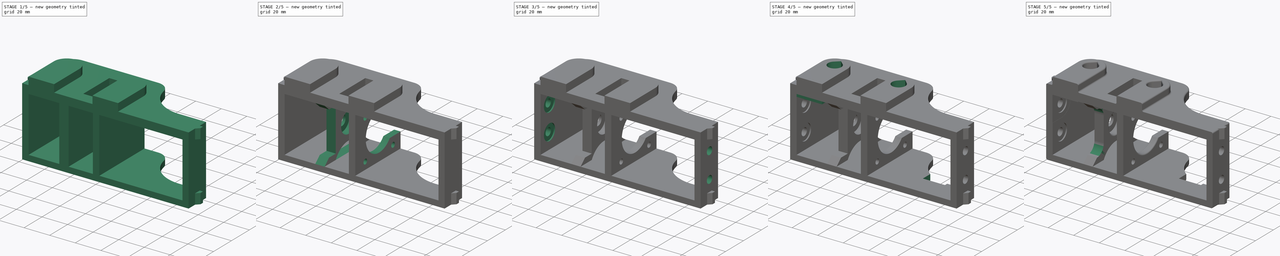
[diagram: build sequence overview — one tinted view per stage of 5, left to right]
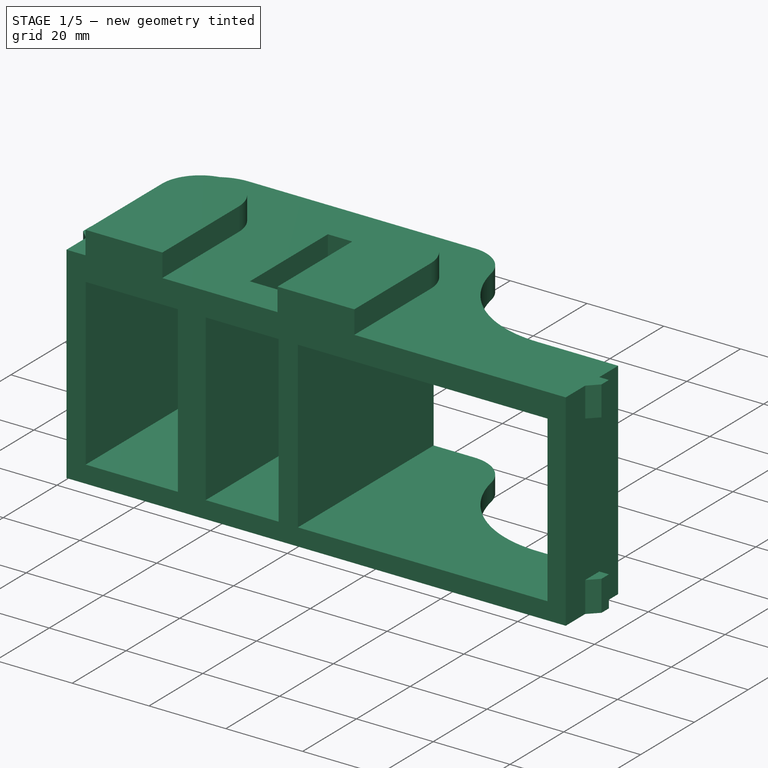
[diagram: stage 1 of 5 — iso view after this stage's code; geometry added in this stage tinted green]
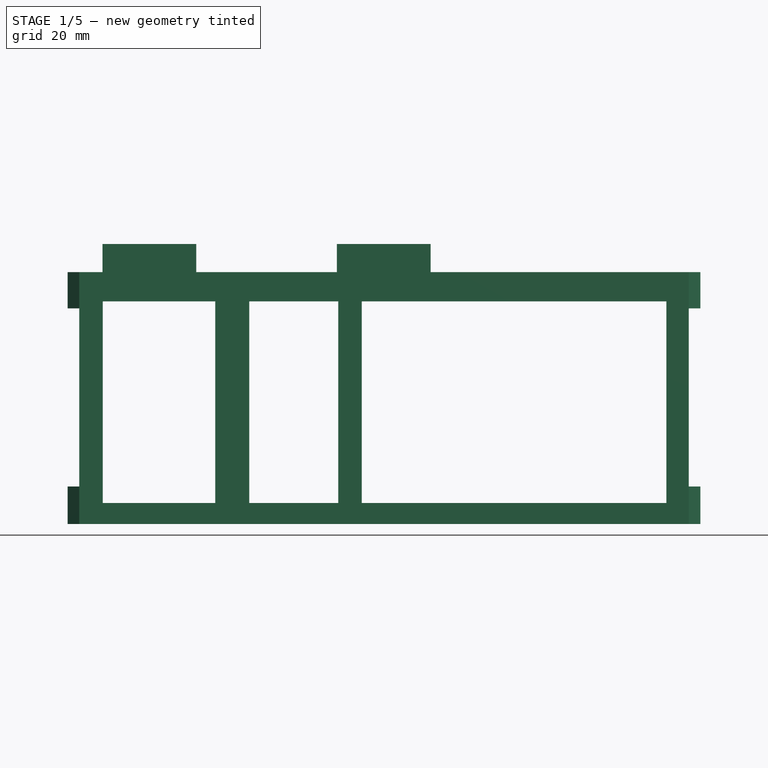
[diagram: stage 1 of 5 — front view after this stage's code; geometry added in this stage tinted green]
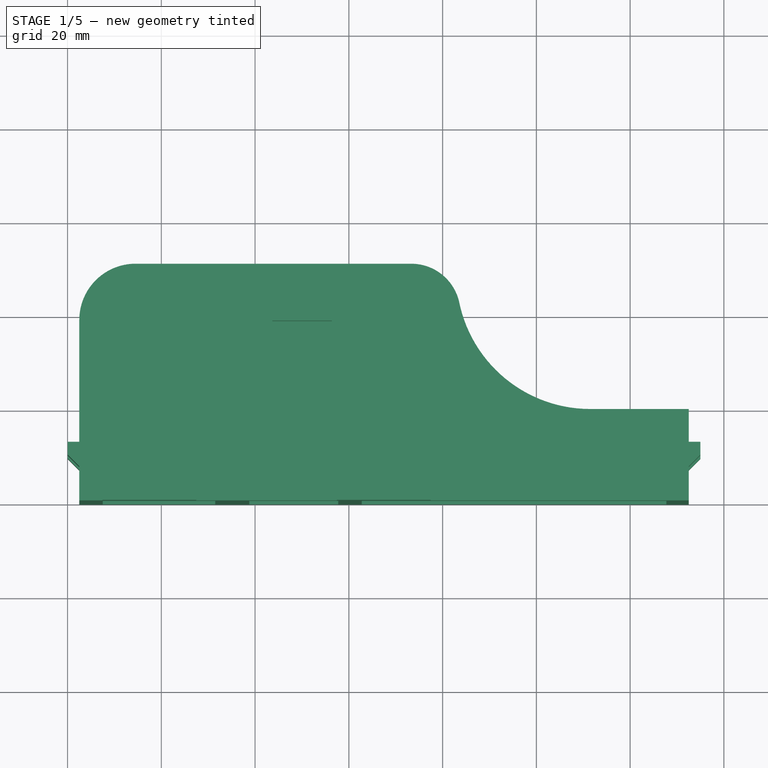
[diagram: stage 1 of 5 — top view after this stage's code; geometry added in this stage tinted green]
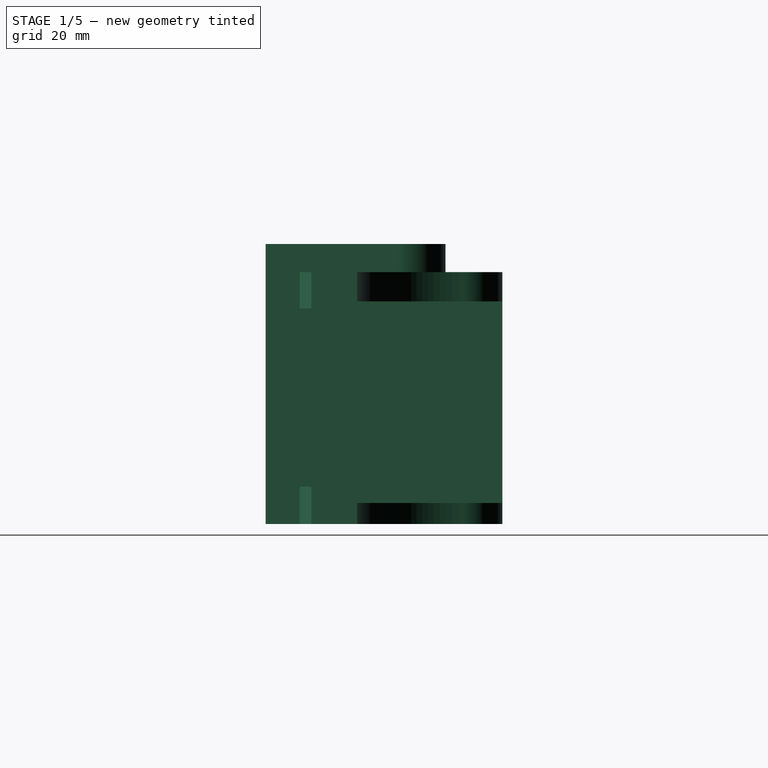
[diagram: stage 1 of 5 — right view after this stage's code; geometry added in this stage tinted green]
FCSTD DOCUMENT  (FreeCAD 0.17R13662 (Git))
Label: Z_lower_leftv2.5
License: CreativeCommons Attribution-ShareAlike
LicenseURL: http://creativecommons.org/licenses/by-sa/4.0/
objects: Sketcher::SketchObject×16, PartDesign::Pocket×14, PartDesign::Fillet×3, PartDesign::Pad×2, PartDesign::Body×1
note: 52 computed .brp shape members not serialized (recipe doc carries the construction recipe); baked Part::Feature solids carry a one-line shape summary decoded from their .brp

FEATURE [Sketcher::SketchObject] Sketch007
  MapMode = 5
  Placement = pos=(38.75,0,0) rot=(0.57735,0.57735,0.57735;2.0944rad)
  sketch-geometry (1):
    g0: Circle CenterX=26.675 CenterY=25.75 CenterZ=0 NormalX=0 NormalY=0 NormalZ=1 AngleXU=0 Radius=8.25
  constraints (3):
    c: Radius(g0) = 8.25
    c: DistanceX(g0) = 26.675
    c: DistanceY(g0) = 25.75
FEATURE [Sketcher::SketchObject] Sketch
  MapMode = 5
  Support = -> [XY_Plane]
  sketch-geometry (18):
    g0: LineSegment StartX=132.5 StartY=0 StartZ=0 EndX=132.5 EndY=7.25 EndZ=0
    g1: LineSegment StartX=132.5 StartY=7.25 StartZ=0 EndX=135 EndY=9.75 EndZ=0
    g2: LineSegment StartX=135 StartY=9.75 StartZ=0 EndX=135 EndY=12.5 EndZ=0
    g3: LineSegment StartX=135 StartY=12.5 StartZ=0 EndX=132.5 EndY=12.5 EndZ=0
    g4: LineSegment StartX=132.5 StartY=12.5 StartZ=0 EndX=132.5 EndY=19.5 EndZ=0
    g5: LineSegment StartX=132.5 StartY=19.5 StartZ=0 EndX=111.5 EndY=19.5 EndZ=0
    g6: LineSegment StartX=2.5 StartY=0 StartZ=0 EndX=2.5 EndY=7.25 EndZ=0
    g7: LineSegment StartX=2.5 StartY=7.25 StartZ=0 EndX=0 EndY=9.75 EndZ=0
    g8: LineSegment StartX=0 StartY=9.75 StartZ=0 EndX=0 EndY=12.5 EndZ=0
    g9: LineSegment StartX=0 StartY=12.5 StartZ=0 EndX=2.5 EndY=12.5 EndZ=0
    g10: LineSegment StartX=2.5 StartY=12.5 StartZ=0 EndX=2.5 EndY=38.5 EndZ=0
    g11: LineSegment StartX=14.5 StartY=50.5 StartZ=0 EndX=73.302 EndY=50.5 EndZ=0
    g12: LineSegment [constr] StartX=73.302 StartY=50.5 StartZ=0 EndX=83.5 EndY=42.5 EndZ=0
    g13: LineSegment [constr] StartX=83.5 StartY=42.5 StartZ=0 EndX=111.5 EndY=19.5 EndZ=0
    g14: LineSegment StartX=2.5 StartY=0 StartZ=0 EndX=132.5 EndY=0 EndZ=0
    g15: ArcOfCircle CenterX=73.302 CenterY=40 CenterZ=0 NormalX=0 NormalY=0 NormalZ=1 AngleXU=0 Radius=10.5 StartAngle=0.240404 EndAngle=1.5708
    g16: ArcOfCircle CenterX=111.5 CenterY=48.0435 CenterZ=0 NormalX=0 NormalY=0 NormalZ=1 AngleXU=0 Radius=28.5435 StartAngle=3.33705 EndAngle=4.71239
    g17: ArcOfCircle CenterX=14.5 CenterY=38.5 CenterZ=0 NormalX=0 NormalY=0 NormalZ=1 AngleXU=0 Radius=12 StartAngle=1.5708 EndAngle=3.14159
  constraints (51):
    c: Coincident(g0,g1)
    c: Coincident(g1,g2)
    c: Coincident(g2,g3)
    c: Coincident(g3,g4)
    c: Coincident(g4,g5)
    c: Coincident(g6,g7)
    c: Coincident(g7,g8)
    c: Coincident(g8,g9)
    c: Coincident(g9,g10)
    c: Coincident(g11,g12)
    c: Coincident(g12,g13)
    c: Coincident(g0,g14)
    c: Coincident(g6,g14)
    c: PointOnObject(g6,g-1)
    c: DistanceX(g6) = 2.5
    c: Vertical(g6)
    c: Vertical(g10)
    c: Vertical(g8)
    c: Vertical(g4)
    c: Vertical(g2)
    c: Vertical(g0)
    c: Horizontal(g3)
    c: Horizontal(g14)
    c: Horizontal(g5)
    c: Horizontal(g11)
    c: Horizontal(g9)
    c: DistanceY(g6,g6) = 7.25
    c: Angle(g7) = 2.35619
    c: DistanceX(g7,g7) = 2.5
    c: DistanceX(g9,g9) = 2.5
    c: DistanceY(g8,g8) = 2.75
    c: DistanceX(g14,g14) = 130
    c: DistanceY(g0,g0) = 7.25
    c: Angle(g1) = 0.785398
    c: DistanceX(g1,g1) = 2.5
    c: DistanceY(g2,g2) = 2.75
    c: DistanceX(g3,g3) = 2.5
    c: DistanceY(g4,g4) = 7
    c: DistanceX(g5,g5) = 21
    c: Tangent(g5,g16) = 1.5708
    c: Tangent(g11,g15) = 1.5708
    c: Coincident(g12,g15)
    c: Coincident(g12,g16)
    c: DistanceX(g12) = 83.5
    c: DistanceY(g12) = 42.5
    c: Coincident(g5,g13)
    c: DistanceY(g10,g10) = 26
    c: Tangent(g10,g17) = 1.5708
    c: Tangent(g11,g17) = 1.5708
    c: DistanceY(g10,g11) = 12
    c: Radius(g15) = 10.5
FEATURE [PartDesign::Pad] Pad
  Length = 59.75
  Length2 = 100
  Profile = -> Sketch
  Type = 0
FEATURE [Sketcher::SketchObject] Sketch001
  MapMode = 5
  Placement = pos=(0,0,0) rot=(1,0,0;1.5708rad)
  Support = -> [Pad]
  sketch-geometry (20):
    g0: LineSegment StartX=7.5 StartY=47.5 StartZ=0 EndX=31.5 EndY=47.5 EndZ=0
    g1: LineSegment StartX=31.5 StartY=47.5 StartZ=0 EndX=31.5 EndY=4.5 EndZ=0
    g2: LineSegment StartX=31.5 StartY=4.5 StartZ=0 EndX=7.5 EndY=4.5 EndZ=0
    g3: LineSegment StartX=7.5 StartY=4.5 StartZ=0 EndX=7.5 EndY=47.5 EndZ=0
    g4: LineSegment StartX=38.75 StartY=47.5 StartZ=0 EndX=57.75 EndY=47.5 EndZ=0
    g5: LineSegment StartX=57.75 StartY=47.5 StartZ=0 EndX=57.75 EndY=4.5 EndZ=0
    g6: LineSegment StartX=57.75 StartY=4.5 StartZ=0 EndX=38.75 EndY=4.5 EndZ=0
    g7: LineSegment StartX=38.75 StartY=4.5 StartZ=0 EndX=38.75 EndY=47.5 EndZ=0
    g8: LineSegment StartX=62.75 StartY=47.5 StartZ=0 EndX=127.75 EndY=47.5 EndZ=0
    g9: LineSegment StartX=127.75 StartY=47.5 StartZ=0 EndX=127.75 EndY=4.5 EndZ=0
    g10: LineSegment StartX=127.75 StartY=4.5 StartZ=0 EndX=62.75 EndY=4.5 EndZ=0
    g11: LineSegment StartX=62.75 StartY=4.5 StartZ=0 EndX=62.75 EndY=47.5 EndZ=0
    g12: LineSegment StartX=0 StartY=46 StartZ=0 EndX=2.5 EndY=46 EndZ=0
    g13: LineSegment StartX=2.5 StartY=46 StartZ=0 EndX=2.5 EndY=8 EndZ=0
    g14: LineSegment StartX=2.5 StartY=8 StartZ=0 EndX=0 EndY=8 EndZ=0
    g15: LineSegment StartX=0 StartY=8 StartZ=0 EndX=0 EndY=46 EndZ=0
    g16: LineSegment StartX=132.5 StartY=46 StartZ=0 EndX=135 EndY=46 EndZ=0
    g17: LineSegment StartX=135 StartY=46 StartZ=0 EndX=135 EndY=8 EndZ=0
    g18: LineSegment StartX=135 StartY=8 StartZ=0 EndX=132.5 EndY=8 EndZ=0
    g19: LineSegment StartX=132.5 StartY=8 StartZ=0 EndX=132.5 EndY=46 EndZ=0
  constraints (60):
    c: Coincident(g0,g1)
    c: Coincident(g1,g2)
    c: Coincident(g2,g3)
    c: Coincident(g3,g0)
    c: Horizontal(g0)
    c: Horizontal(g2)
    c: Vertical(g1)
    c: Vertical(g3)
    c: Coincident(g4,g5)
    c: Coincident(g5,g6)
    c: Coincident(g6,g7)
    c: Coincident(g7,g4)
    c: Horizontal(g4)
    c: Horizontal(g6)
    c: Vertical(g5)
    c: Vertical(g7)
    c: Coincident(g8,g9)
    c: Coincident(g9,g10)
    c: Coincident(g10,g11)
    c: Coincident(g11,g8)
    c: Horizontal(g8)
    c: Horizontal(g10)
    c: Vertical(g9)
    c: Vertical(g11)
    c: Coincident(g12,g13)
    c: Coincident(g13,g14)
    c: Coincident(g14,g15)
    c: Coincident(g15,g12)
    c: Horizontal(g12)
    c: Horizontal(g14)
    c: Vertical(g13)
    c: Vertical(g15)
    c: Coincident(g16,g17)
    c: Coincident(g17,g18)
    c: Coincident(g18,g19)
    c: Coincident(g19,g16)
    c: Horizontal(g16)
    c: Horizontal(g18)
    c: Vertical(g17)
    c: Vertical(g19)
    c: PointOnObject(g12,g-2)
    c: DistanceY(g14) = 8
    c: DistanceX(g14,g14) = 2.5
    c: Equal(g18,g14)
    c: Equal(g19,g15)
    c: DistanceX(g14,g18) = 132.5
    c: DistanceY(g18) = 8
    c: DistanceY(g17,g17) = 38
    c: DistanceX(g2) = 7.5
    c: DistanceY(g2) = 4.5
    c: DistanceX(g2,g2) = 24
    c: DistanceX(g1,g6) = 7.25
    c: DistanceY(g1,g6) = 0
    c: Equal(g1,g7)
    c: Equal(g7,g11)
    c: DistanceY(g3,g3) = 43
    c: DistanceX(g4,g4) = 19
    c: DistanceY(g10,g5) = 0
    c: DistanceX(g5,g10) = 5
    c: DistanceX(g8,g8) = 65
FEATURE [PartDesign::Pocket] Pocket
  BaseFeature = -> Pad
  Length = 5
  Length2 = 100
  Profile = -> Sketch001
  Type = 1
FEATURE [Sketcher::SketchObject] Sketch002
  MapMode = 5
  Placement = pos=(0,0,59.75) rot=(0,0,1;0rad)
  Support = -> [Pocket]
  sketch-geometry (14):
    g0: LineSegment StartX=0 StartY=0 StartZ=0 EndX=0 EndY=51 EndZ=0
    g1: LineSegment StartX=0 StartY=51 StartZ=0 EndX=135 EndY=51 EndZ=0
    g2: LineSegment StartX=135 StartY=51 StartZ=0 EndX=135 EndY=0 EndZ=0
    g3: LineSegment StartX=0 StartY=0 StartZ=0 EndX=7.45 EndY=0 EndZ=0
    g4: LineSegment StartX=7.45 StartY=0 StartZ=0 EndX=7.45 EndY=28.375 EndZ=0
    g5: LineSegment [constr] StartX=7.45 StartY=28.375 StartZ=0 EndX=27.45 EndY=28.375 EndZ=0
    g6: LineSegment StartX=27.45 StartY=28.375 StartZ=0 EndX=27.45 EndY=0 EndZ=0
    g7: LineSegment StartX=27.45 StartY=0 StartZ=0 EndX=57.45 EndY=0 EndZ=0
    g8: LineSegment StartX=57.45 StartY=0 StartZ=0 EndX=57.45 EndY=28.375 EndZ=0
    g9: LineSegment [constr] StartX=57.45 StartY=28.375 StartZ=0 EndX=77.45 EndY=28.375 EndZ=0
    g10: LineSegment StartX=77.45 StartY=28.375 StartZ=0 EndX=77.45 EndY=0 EndZ=0
    g11: LineSegment StartX=77.45 StartY=0 StartZ=0 EndX=135 EndY=0 EndZ=0
    g12: ArcOfCircle CenterX=67.45 CenterY=28.375 CenterZ=0 NormalX=0 NormalY=0 NormalZ=1 AngleXU=0 Radius=10 StartAngle=0 EndAngle=3.14159
    g13: ArcOfCircle CenterX=17.45 CenterY=28.375 CenterZ=0 NormalX=0 NormalY=0 NormalZ=1 AngleXU=0 Radius=10 StartAngle=0 EndAngle=3.14159
  constraints (41):
    c: Coincident(g0,g1)
    c: Coincident(g1,g2)
    c: Horizontal(g1)
    c: Vertical(g0)
    c: Vertical(g2)
    c: DistanceY(g2,g2) = 51
    c: DistanceX(g0,g2) = 135
    c: Coincident(g3,g4)
    c: Coincident(g4,g5)
    c: Coincident(g5,g6)
    c: Coincident(g6,g7)
    c: Coincident(g7,g8)
    c: Coincident(g8,g9)
    c: Coincident(g9,g10)
    c: Coincident(g10,g11)
    c: Coincident(g2,g11)
    c: Coincident(g0,g3)
    c: Coincident(g0,g-1)
    c: Horizontal(g3)
    c: Horizontal(g5)
    c: Horizontal(g7)
    c: Horizontal(g11)
    c: Horizontal(g9)
    c: Vertical(g10)
    c: Vertical(g8)
    c: Vertical(g6)
    c: Vertical(g4)
    c: DistanceY(g8,g8) = 28.375
    c: PointOnObject(g7,g-1)
    c: DistanceX(g3,g3) = 7.45
    c: DistanceX(g5,g5) = 20
    c: DistanceX(g7,g7) = 30
    c: Equal(g9,g5)
    c: Equal(g10,g8)
    c: Coincident(g9,g12)
    c: Coincident(g8,g12)
    c: PointOnObject(g12,g9)
    c: Equal(g6,g8)
    c: Coincident(g5,g13)
    c: Coincident(g4,g13)
    c: PointOnObject(g13,g5)
FEATURE [Sketcher::SketchObject] Sketch004
  MapMode = 5
  Placement = pos=(0,0,54) rot=(0,0,1;0rad)
  sketch-geometry (4):
    g0: LineSegment StartX=43.7 StartY=38.35 StartZ=0 EndX=56.375 EndY=38.35 EndZ=0
    g1: LineSegment StartX=56.375 StartY=38.35 StartZ=0 EndX=56.375 EndY=9.35 EndZ=0
    g2: LineSegment StartX=56.375 StartY=9.35 StartZ=0 EndX=43.7 EndY=9.35 EndZ=0
    g3: LineSegment StartX=43.7 StartY=9.35 StartZ=0 EndX=43.7 EndY=38.35 EndZ=0
  constraints (12):
    c: Coincident(g0,g1)
    c: Coincident(g1,g2)
    c: Coincident(g2,g3)
    c: Coincident(g3,g0)
    c: Horizontal(g0)
    c: Horizontal(g2)
    c: Vertical(g1)
    c: Vertical(g3)
    c: DistanceX(g2) = 43.7
    c: DistanceY(g2) = 9.35
    c: DistanceX(g2,g2) = 12.675
    c: DistanceY(g1,g1) = 29
FEATURE [Sketcher::SketchObject] Sketch005
  MapMode = 5
  Placement = pos=(62.75,0,0) rot=(0.57735,0.57735,0.57735;2.0944rad)
  sketch-geometry (12):
    g0: LineSegment [constr] StartX=11.175 StartY=41.25 StartZ=0 EndX=42.175 EndY=41.25 EndZ=0
    g1: LineSegment [constr] StartX=42.175 StartY=41.25 StartZ=0 EndX=42.175 EndY=10.25 EndZ=0
    g2: LineSegment [constr] StartX=42.175 StartY=10.25 StartZ=0 EndX=11.175 EndY=10.25 EndZ=0
    g3: LineSegment [constr] StartX=11.175 StartY=10.25 StartZ=0 EndX=11.175 EndY=41.25 EndZ=0
    g4: LineSegment [constr] StartX=11.175 StartY=41.25 StartZ=0 EndX=26.675 EndY=41.25 EndZ=0
    g5: LineSegment [constr] StartX=26.675 StartY=41.25 StartZ=0 EndX=26.675 EndY=25.75 EndZ=0
    g6: LineSegment [constr] StartX=26.675 StartY=25.75 StartZ=0 EndX=11.175 EndY=25.75 EndZ=0
    g7: LineSegment [constr] StartX=11.175 StartY=25.75 StartZ=0 EndX=11.175 EndY=41.25 EndZ=0
    g8: Circle CenterX=26.675 CenterY=25.75 CenterZ=0 NormalX=0 NormalY=0 NormalZ=1 AngleXU=0 Radius=15
    g9: Circle CenterX=11.175 CenterY=41.25 CenterZ=0 NormalX=0 NormalY=0 NormalZ=1 AngleXU=0 Radius=2
    g10: Circle CenterX=42.175 CenterY=10.25 CenterZ=0 NormalX=0 NormalY=0 NormalZ=1 AngleXU=0 Radius=2
    g11: Circle CenterX=11.175 CenterY=10.25 CenterZ=0 NormalX=0 NormalY=0 NormalZ=1 AngleXU=0 Radius=2
  constraints (31):
    c: Coincident(g0,g1)
    c: Coincident(g1,g2)
    c: Coincident(g2,g3)
    c: Coincident(g3,g0)
    c: Horizontal(g0)
    c: Horizontal(g2)
    c: Vertical(g1)
    c: Vertical(g3)
    c: Coincident(g4,g5)
    c: Coincident(g5,g6)
    c: Coincident(g6,g7)
    c: Coincident(g7,g4)
    c: Horizontal(g4)
    c: Horizontal(g6)
    c: Vertical(g5)
    c: Vertical(g7)
    c: Coincident(g0,g4)
    c: DistanceX(g5) = 26.675
    c: DistanceY(g5) = 25.75
    c: Coincident(g5,g8)
    c: Radius(g8) = 15
    c: Equal(g5,g6)
    c: Equal(g3,g0)
    c: DistanceX(g0,g0) = 31
    c: DistanceY(g5,g5) = 15.5
    c: Coincident(g2,g11)
    c: Coincident(g1,g10)
    c: Coincident(g0,g9)
    c: Radius(g9) = 2
    c: Equal(g9,g11)
    c: Equal(g9,g10)
FEATURE [Sketcher::SketchObject] Sketch006
  MapMode = 5
  Placement = pos=(38.75,0,0) rot=(0.57735,0.57735,0.57735;2.0944rad)
  sketch-geometry (19):
    g0: Circle CenterX=26.675 CenterY=25.75 CenterZ=0 NormalX=0 NormalY=0 NormalZ=1 AngleXU=0 Radius=4
    g1: ArcOfCircle CenterX=42.175 CenterY=10.25 CenterZ=0 NormalX=0 NormalY=0 NormalZ=1 AngleXU=0 Radius=3 StartAngle=1.83772 EndAngle=5.77619
    g2: LineSegment StartX=0 StartY=4.5 StartZ=0 EndX=4.99776 EndY=9 EndZ=0
    g3: LineSegment StartX=4.99776 StartY=9 StartZ=0 EndX=12.4978 EndY=9 EndZ=0
    g4: LineSegment StartX=12.4978 StartY=9 StartZ=0 EndX=12.4978 EndY=43 EndZ=0
    g5: LineSegment StartX=12.4978 StartY=43 StartZ=0 EndX=4.99776 EndY=43 EndZ=0
    g6: LineSegment StartX=4.99776 StartY=43 StartZ=0 EndX=0 EndY=47.5 EndZ=0
    g7: LineSegment StartX=0 StartY=47.5 StartZ=0 EndX=0 EndY=4.5 EndZ=0
    g8: LineSegment StartX=50.5 StartY=47.5 StartZ=0 EndX=50.5 EndY=4.49366 EndZ=0
    g9: LineSegment StartX=40.5 StartY=4.5 StartZ=0 EndX=12.5 EndY=4.5 EndZ=0
    g10: LineSegment StartX=12.5 StartY=47.5 StartZ=0 EndX=40.5 EndY=47.5 EndZ=0
    g11: ArcOfCircle CenterX=62.2415 CenterY=25.9968 CenterZ=0 NormalX=0 NormalY=0 NormalZ=1 AngleXU=0 Radius=24.5 StartAngle=2.07059 EndAngle=3.69386
    g12: ArcOfCircle CenterX=62.2415 CenterY=25.9968 CenterZ=0 NormalX=0 NormalY=0 NormalZ=1 AngleXU=0 Radius=24.5 StartAngle=3.92005 EndAngle=4.21259
    g13: LineSegment [constr] StartX=12.5 StartY=4.5 StartZ=0 EndX=40.5 EndY=4.5 EndZ=0
    g14: LineSegment [constr] StartX=40.5 StartY=4.5 StartZ=0 EndX=40.5 EndY=47.5 EndZ=0
    g15: LineSegment [constr] StartX=40.5 StartY=47.5 StartZ=0 EndX=12.5 EndY=47.5 EndZ=0
    g16: LineSegment [constr] StartX=12.5 StartY=47.5 StartZ=0 EndX=12.5 EndY=4.5 EndZ=0
    g17: ArcOfCircle CenterX=26.5 CenterY=-3.24597 CenterZ=0 NormalX=0 NormalY=0 NormalZ=1 AngleXU=0 Radius=16 StartAngle=0.505361 EndAngle=2.63623
    g18: ArcOfCircle CenterX=26.5 CenterY=55.246 CenterZ=0 NormalX=0 NormalY=0 NormalZ=1 AngleXU=0 Radius=16 StartAngle=3.64695 EndAngle=5.77782
  constraints (58):
    c: Radius(g0) = 4
    c: DistanceX(g0) = 26.675
    c: DistanceY(g0) = 25.75
    c: DistanceX(g1) = 42.175
    c: DistanceY(g1) = 10.25
    c: Radius(g1) = 3
    c: Coincident(g2,g3)
    c: Coincident(g3,g4)
    c: Coincident(g4,g5)
    c: Coincident(g5,g6)
    c: Coincident(g6,g7)
    c: Coincident(g2,g7)
    c: PointOnObject(g2,g-2)
    c: Angle(g2) = 0.733038
    c: DistanceY(g2) = 4.5
    c: Horizontal(g3)
    c: Horizontal(g5)
    c: Vertical(g4)
    c: Vertical(g7)
    c: DistanceY(g2,g2) = 4.5
    c: DistanceX(g3,g3) = 7.5
    c: DistanceY(g4,g4) = 34
    c: Angle(g6) = 2.40855
    c: Equal(g5,g3)
    c: DistanceX(g10) = 12.5
    c: Horizontal(g10)
    c: DistanceY(g10) = 47.5
    c: DistanceX(g10,g10) = 28
    c: DistanceX(g8,g10) = -10
    c: DistanceY(g8,g10) = 0
    c: Vertical(g8)
    c: Coincident(g8,g12)
    c: Radius(g11) = 24.5
    c: Equal(g11,g12)
    c: Coincident(g11,g1)
    c: Coincident(g12,g1)
    c: Coincident(g11,g12)
    c: Distance(g1,g1) = 5.53
    c: Coincident(g13,g14)
    c: Coincident(g14,g15)
    c: Coincident(g15,g16)
    c: Coincident(g16,g13)
    c: Horizontal(g13)
    c: Horizontal(g15)
    c: Vertical(g14)
    c: Vertical(g16)
    c: Coincident(g10,g14)
    c: Coincident(g10,g15)
    c: Coincident(g9,g13)
    c: Coincident(g9,g13)
    c: DistanceY(g16,g16) = 43
    c: Coincident(g8,g11)
    c: Coincident(g9,g17)
    c: Coincident(g9,g17)
    c: Radius(g17) = 16
    c: Coincident(g10,g18)
    c: Coincident(g10,g18)
    c: Radius(g18) = 16
FEATURE [Sketcher::SketchObject] Sketch008
  MapMode = 5
  Placement = pos=(62.75,0,0) rot=(0.57735,0.57735,0.57735;2.0944rad)
  sketch-geometry (5):
    g0: LineSegment StartX=38.4834 StartY=16.5 StartZ=0 EndX=50.5 EndY=16.5 EndZ=0
    g1: LineSegment StartX=50.5 StartY=16.5 StartZ=0 EndX=50.5 EndY=47.5 EndZ=0
    g2: LineSegment StartX=50.5 StartY=47.5 StartZ=0 EndX=41.75 EndY=47.5 EndZ=0
    g3: LineSegment StartX=41.75 StartY=47.5 StartZ=0 EndX=33.4053 EndY=39.1553 EndZ=0
    g4: ArcOfCircle CenterX=26.675 CenterY=25.75 CenterZ=0 NormalX=0 NormalY=0 NormalZ=1 AngleXU=0 Radius=15 StartAngle=5.61868 EndAngle=7.38868
  constraints (16):
    c: Coincident(g0,g1)
    c: Coincident(g1,g2)
    c: Coincident(g2,g3)
    c: Coincident(g0,g4)
    c: Coincident(g3,g4)
    c: Horizontal(g2)
    c: Horizontal(g0)
    c: Vertical(g1)
    c: Angle(g3) = -2.35619
    c: DistanceX(g2) = 41.75
    c: DistanceY(g2) = 47.5
    c: DistanceX(g2,g2) = 8.75
    c: DistanceY(g1,g1) = 31
    c: DistanceX(g4) = 26.675
    c: DistanceY(g4) = 25.75
    c: Radius(g4) = 15
FEATURE [Sketcher::SketchObject] Sketch009
  MapMode = 5
  Placement = pos=(132.5,0,0) rot=(0.57735,0.57735,0.57735;2.0944rad)
  sketch-geometry (2):
    g0: Circle CenterX=10 CenterY=37 CenterZ=0 NormalX=0 NormalY=0 NormalZ=1 AngleXU=0 Radius=3
    g1: Circle CenterX=10 CenterY=16.75 CenterZ=0 NormalX=0 NormalY=0 NormalZ=1 AngleXU=0 Radius=3
  constraints (6):
    c: DistanceX(g1,g0) = 0
    c: DistanceY(g1,g0) = 20.25
    c: DistanceX(g1) = 10
    c: DistanceY(g1) = 16.75
    c: Radius(g0) = 3
    c: Equal(g0,g1)
FEATURE [Sketcher::SketchObject] Sketch010
  MapMode = 5
  Placement = pos=(2.5,0,0) rot=(0.57735,-0.57735,-0.57735;2.0944rad)
  sketch-geometry (2):
    g0: Circle CenterX=-10 CenterY=37 CenterZ=0 NormalX=0 NormalY=0 NormalZ=1 AngleXU=0 Radius=3
    g1: Circle CenterX=-10 CenterY=16.75 CenterZ=0 NormalX=0 NormalY=0 NormalZ=1 AngleXU=0 Radius=3
  constraints (6):
    c: Equal(g0,g1)
    c: DistanceX(g0,g1) = 0
    c: DistanceY(g0,g1) = -20.25
    c: DistanceX(g1) = -10
    c: DistanceY(g1) = 16.75
    c: Radius(g0) = 3
FEATURE [Sketcher::SketchObject] Sketch014
  MapMode = 5
  Placement = pos=(7.5,0,0) rot=(0.57735,0.57735,0.57735;2.0944rad)
  sketch-geometry (2):
    g0: Circle CenterX=10 CenterY=37 CenterZ=0 NormalX=0 NormalY=0 NormalZ=1 AngleXU=0 Radius=6.25
    g1: Circle CenterX=10 CenterY=16.75 CenterZ=0 NormalX=0 NormalY=0 NormalZ=1 AngleXU=0 Radius=6.25
  constraints (6):
    c: Radius(g0) = 6.25
    c: Equal(g0,g1)
    c: DistanceX(g1) = 10
    c: DistanceY(g1) = 16.75
    c: DistanceX(g1,g0) = 0
    c: DistanceY(g1,g0) = 20.25
FEATURE [Sketcher::SketchObject] Sketch015
  MapMode = 5
  Placement = pos=(127.75,0,0) rot=(0.57735,-0.57735,-0.57735;2.0944rad)
  sketch-geometry (2):
    g0: Circle CenterX=-10 CenterY=37 CenterZ=0 NormalX=0 NormalY=0 NormalZ=1 AngleXU=0 Radius=6.25
    g1: Circle CenterX=-10 CenterY=16.75 CenterZ=0 NormalX=0 NormalY=0 NormalZ=1 AngleXU=0 Radius=6.25
  constraints (6):
    c: Radius(g0) = 6.25
    c: Equal(g0,g1)
    c: DistanceX(g1,g0) = 0
    c: DistanceY(g1,g0) = 20.25
    c: DistanceX(g1) = -10
    c: DistanceY(g1) = 16.75
FEATURE [Sketcher::SketchObject] Sketch016
  MapMode = 5
  Placement = pos=(0,0,4.5) rot=(0,0,1;0rad)
  sketch-geometry (4):
    g0: LineSegment StartX=111.5 StartY=17 StartZ=0 EndX=94.25 EndY=17 EndZ=0
    g1: LineSegment StartX=94.25 StartY=17 StartZ=0 EndX=94.25 EndY=25.5 EndZ=0
    g2: LineSegment StartX=94.25 StartY=25.5 StartZ=0 EndX=111.5 EndY=25.5 EndZ=0
    g3: LineSegment StartX=111.5 StartY=25.5 StartZ=0 EndX=111.5 EndY=17 EndZ=0
  constraints (12):
    c: Coincident(g0,g1)
    c: Coincident(g1,g2)
    c: Coincident(g2,g3)
    c: Coincident(g3,g0)
    c: Horizontal(g0)
    c: Horizontal(g2)
    c: Vertical(g1)
    c: Vertical(g3)
    c: DistanceY(g3,g3) = 8.5
    c: DistanceX(g0) = 94.25
    c: DistanceY(g0) = 17
    c: DistanceX(g0,g0) = 17.25
FEATURE [PartDesign::Pocket] Pocket001
  BaseFeature = -> Pocket
  Length = 6
  Length2 = 100
  Profile = -> Sketch002
  Type = 0
FEATURE [Sketcher::SketchObject] Sketch003
  MapMode = 5
  Placement = pos=(0,0,59.75) rot=(0,0,1;0rad)
  Support = -> [Pocket001]
  sketch-geometry (6):
    g0: ArcOfCircle CenterX=17.45 CenterY=28.375 CenterZ=0 NormalX=0 NormalY=0 NormalZ=1 AngleXU=0 Radius=5.25 StartAngle=2.30052 EndAngle=7.12425
    g1: ArcOfCircle CenterX=67.45 CenterY=28.375 CenterZ=0 NormalX=0 NormalY=0 NormalZ=1 AngleXU=0 Radius=5.25 StartAngle=2.3367 EndAngle=7.08808
    g2: LineSegment StartX=63.8108 StartY=32.159 StartZ=0 EndX=67.45 EndY=35.659 EndZ=0
    g3: LineSegment StartX=67.45 StartY=35.659 StartZ=0 EndX=71.0892 EndY=32.159 EndZ=0
    g4: LineSegment StartX=13.95 StartY=32.2881 StartZ=0 EndX=17.45 EndY=35.4186 EndZ=0
    g5: LineSegment StartX=17.45 StartY=35.4186 StartZ=0 EndX=20.95 EndY=32.2881 EndZ=0
  constraints (16):
    c: DistanceX(g0) = 17.45
    c: DistanceY(g0) = 28.375
    c: DistanceX(g1,g0) = -50
    c: DistanceY(g1,g0) = 0
    c: Radius(g0) = 5.25
    c: Equal(g0,g1)
    c: Coincident(g2,g3)
    c: Coincident(g4,g5)
    c: DistanceX(g0,g4) = 0
    c: Tangent(g0,g5) = 1.5708
    c: Tangent(g0,g4) = 1.5708
    c: DistanceX(g4,g4) = 3.5
    c: DistanceY(g2,g2) = 3.5
    c: DistanceX(g2,g1) = 0
    c: Tangent(g1,g3) = 1.5708
    c: Tangent(g1,g2) = 1.5708
FEATURE [PartDesign::Pocket] Pocket003
  BaseFeature = -> Pocket001
  Length = 8
  Length2 = 100
  Profile = -> Sketch004
  Type = 0
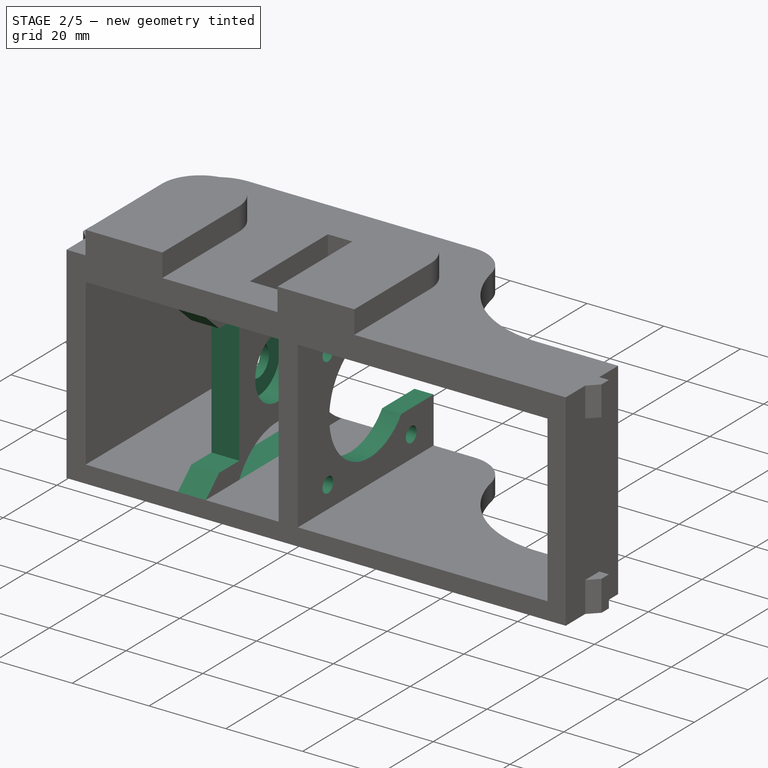
[diagram: stage 2 of 5 — iso view after this stage's code; geometry added in this stage tinted green]
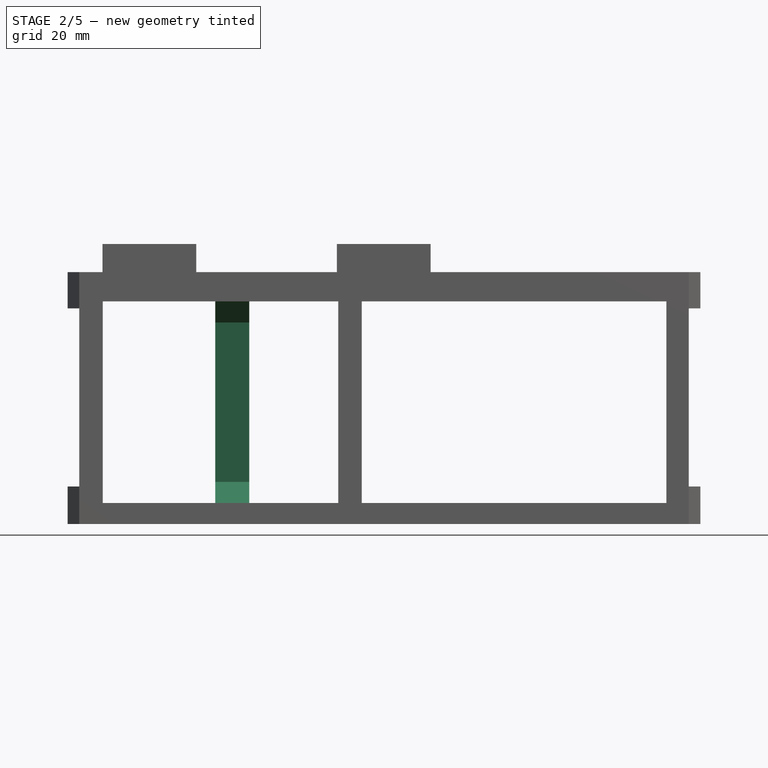
[diagram: stage 2 of 5 — front view after this stage's code; geometry added in this stage tinted green]
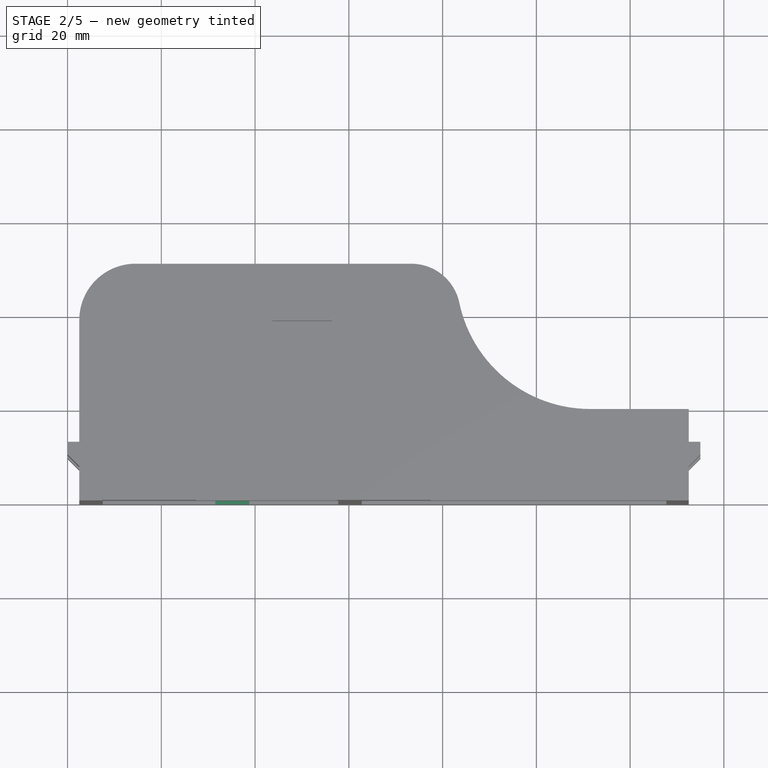
[diagram: stage 2 of 5 — top view after this stage's code; geometry added in this stage tinted green]
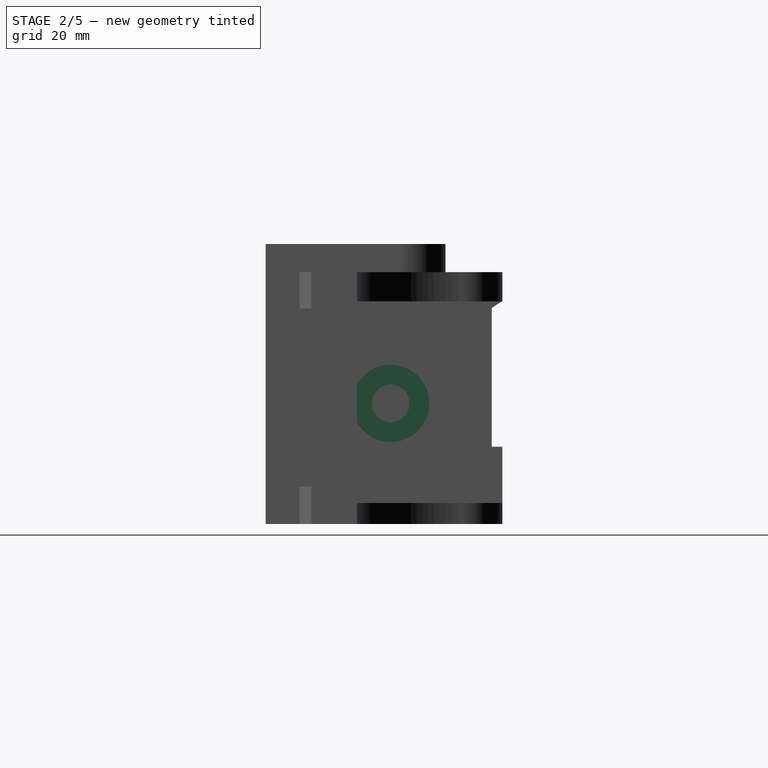
[diagram: stage 2 of 5 — right view after this stage's code; geometry added in this stage tinted green]
FEATURE [PartDesign::Pocket] Pocket004
  BaseFeature = -> Pocket003
  Length = 5
  Length2 = 100
  Profile = -> Sketch005
  Type = 0
FEATURE [PartDesign::Pocket] Pocket005
  BaseFeature = -> Pocket004
  Length = 7.25
  Length2 = 100
  Profile = -> Sketch006
  Type = 0
FEATURE [PartDesign::Pocket] Pocket006
  BaseFeature = -> Pocket005
  Length = 5
  Length2 = 100
  Profile = -> Sketch007
  Type = 0
FEATURE [PartDesign::Pocket] Pocket007
  BaseFeature = -> Pocket006
  Length = 5
  Length2 = 100
  Profile = -> Sketch008
  Type = 0
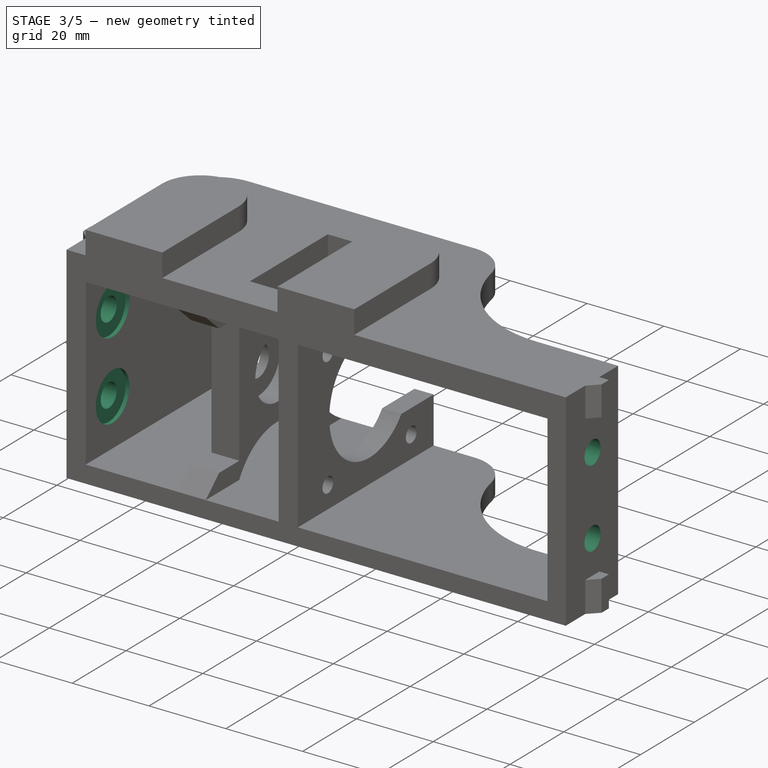
[diagram: stage 3 of 5 — iso view after this stage's code; geometry added in this stage tinted green]
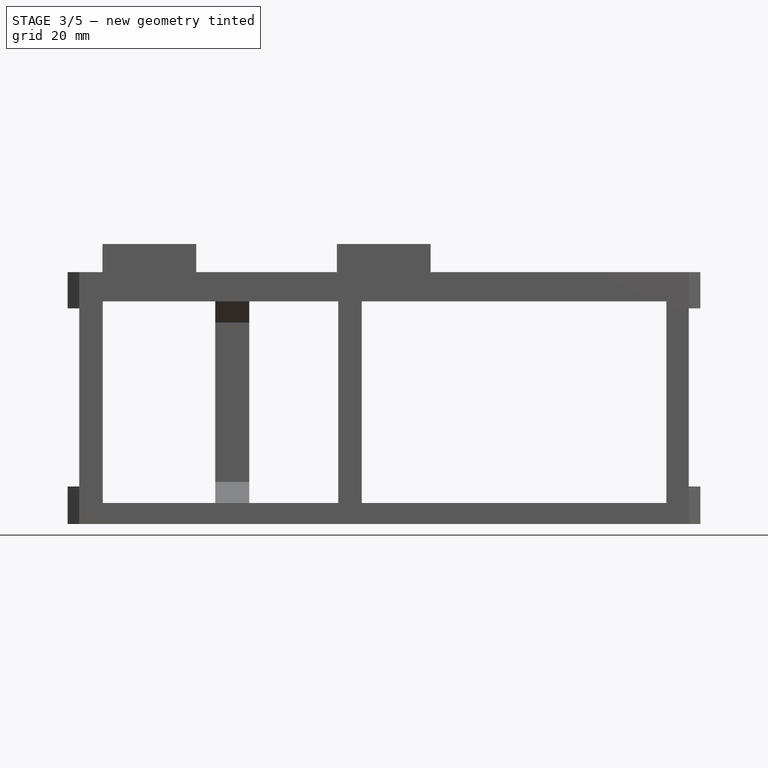
[diagram: stage 3 of 5 — front view after this stage's code; geometry added in this stage tinted green]
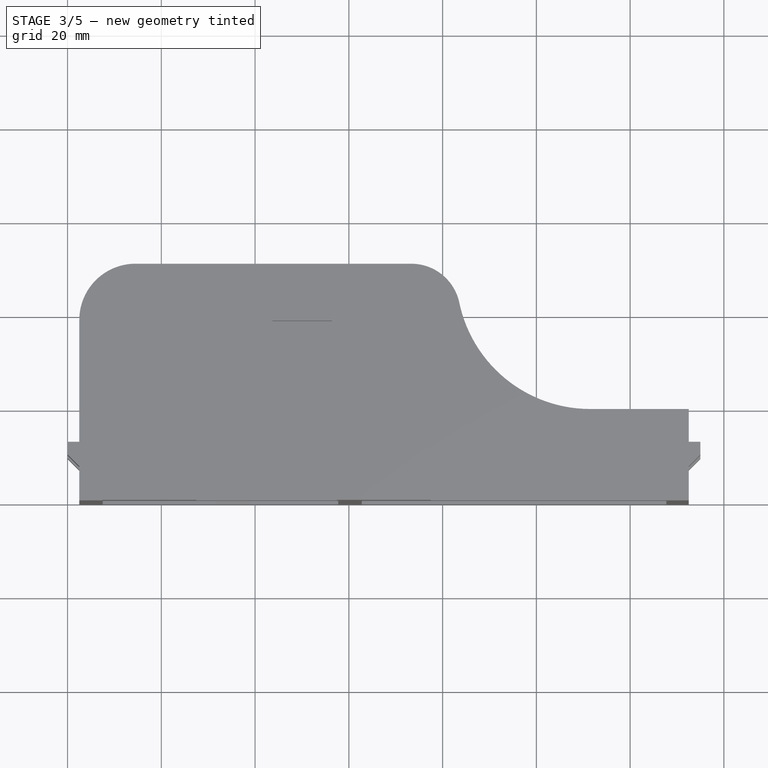
[diagram: stage 3 of 5 — top view after this stage's code; geometry added in this stage tinted green]
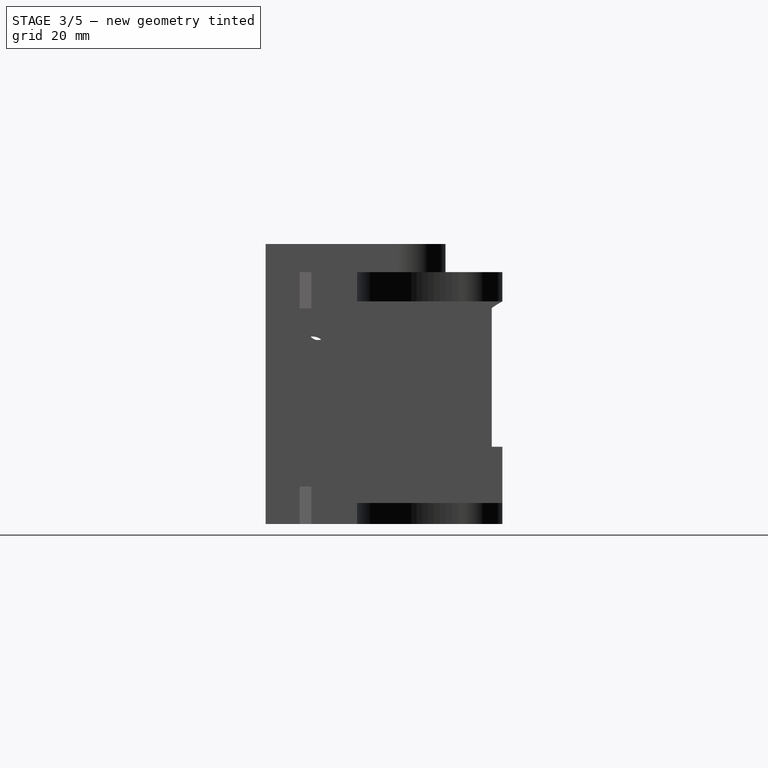
[diagram: stage 3 of 5 — right view after this stage's code; geometry added in this stage tinted green]
FEATURE [PartDesign::Pocket] Pocket008
  BaseFeature = -> Pocket007
  Length = 5
  Length2 = 100
  Profile = -> Sketch009
  Type = 0
FEATURE [PartDesign::Pocket] Pocket009
  BaseFeature = -> Pocket008
  Length = 5
  Length2 = 100
  Profile = -> Sketch010
  Type = 0
FEATURE [PartDesign::Pocket] Pocket010
  BaseFeature = -> Pocket009
  Length = 1
  Length2 = 100
  Profile = -> Sketch014
  Type = 0
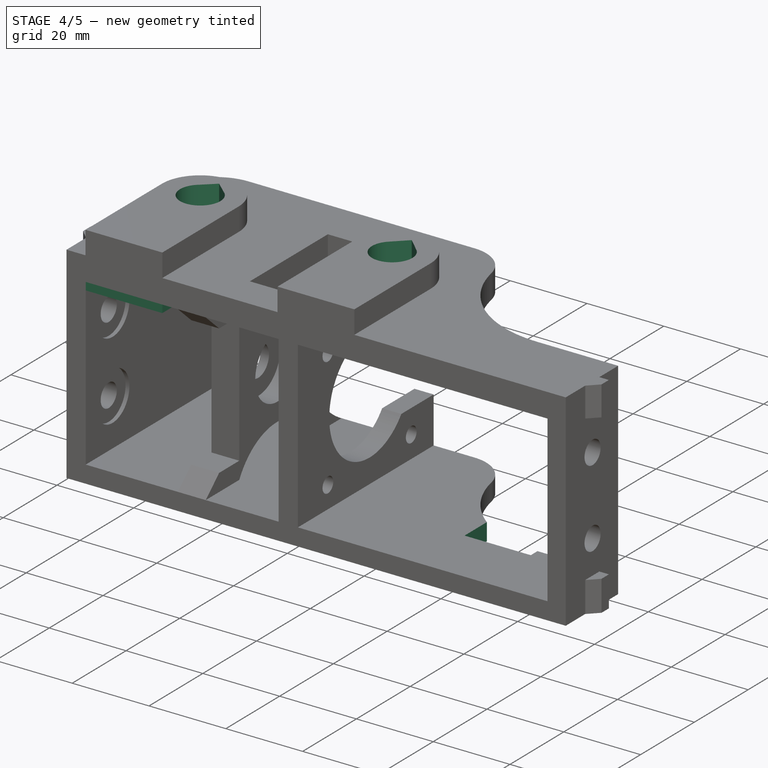
[diagram: stage 4 of 5 — iso view after this stage's code; geometry added in this stage tinted green]
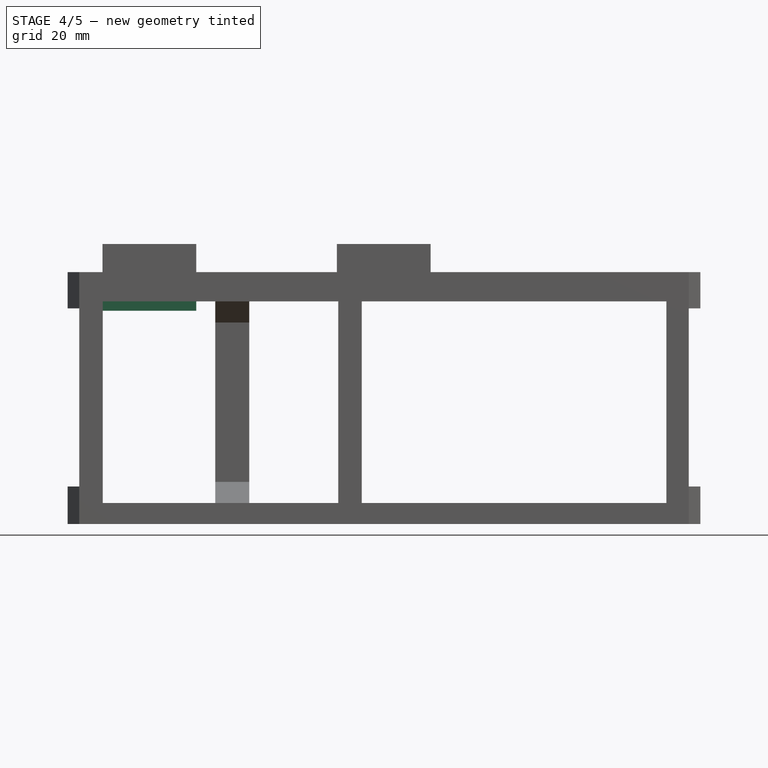
[diagram: stage 4 of 5 — front view after this stage's code; geometry added in this stage tinted green]
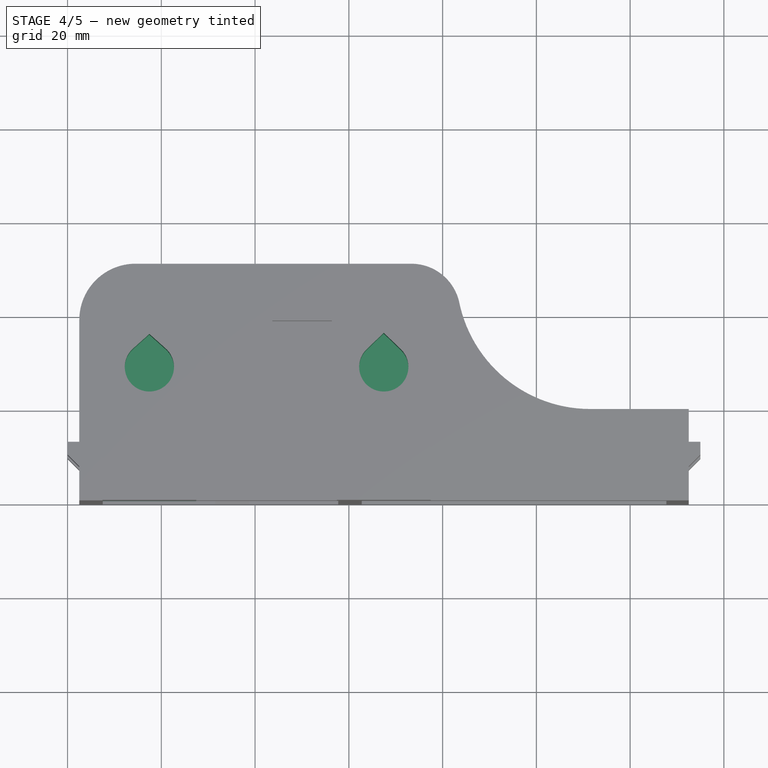
[diagram: stage 4 of 5 — top view after this stage's code; geometry added in this stage tinted green]
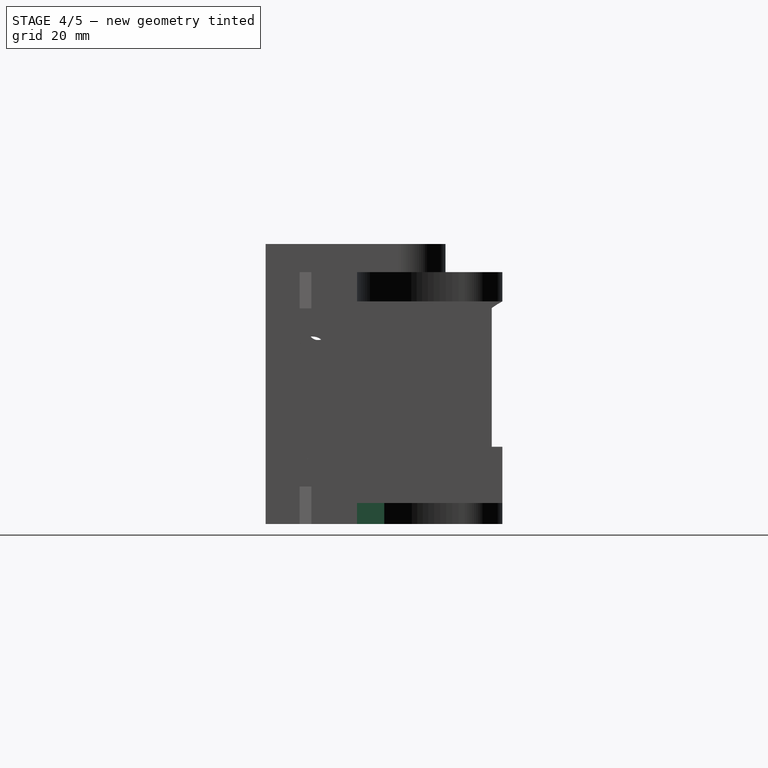
[diagram: stage 4 of 5 — right view after this stage's code; geometry added in this stage tinted green]
FEATURE [PartDesign::Pocket] Pocket011
  BaseFeature = -> Pocket010
  Length = 1
  Length2 = 100
  Profile = -> Sketch015
  Type = 0
FEATURE [PartDesign::Pocket] Pocket012
  BaseFeature = -> Pocket011
  Length = 5
  Length2 = 100
  Profile = -> Sketch016
  Type = 0
FEATURE [PartDesign::Pocket] Pocket013
  BaseFeature = -> Pocket012
  Length = 11
  Length2 = 100
  Profile = -> Sketch003
  Type = 0
FEATURE [Sketcher::SketchObject] Sketch017
  ExternalGeometry = -> [Pocket013]
  MapMode = 5
  Placement = pos=(0,0,47.5) rot=(1,0,0;3.14159rad)
  Support = -> [Pocket013]
  sketch-geometry (5):
    g0: LineSegment StartX=27.45 StartY=0 StartZ=0 EndX=7.45 EndY=0 EndZ=0
    g1: LineSegment StartX=7.45 StartY=0 StartZ=0 EndX=7.45 EndY=-28.38 EndZ=0
    g2: LineSegment [constr] StartX=7.45 StartY=-28.38 StartZ=0 EndX=27.45 EndY=-28.38 EndZ=0
    g3: LineSegment StartX=27.45 StartY=-28.38 StartZ=0 EndX=27.45 EndY=0 EndZ=0
    g4: ArcOfCircle CenterX=17.45 CenterY=-28.38 CenterZ=0 NormalX=0 NormalY=0 NormalZ=1 AngleXU=0 Radius=10 StartAngle=3.14159 EndAngle=6.28319
  constraints (14):
    c: Coincident(g0,g1)
    c: Coincident(g2,g3)
    c: Coincident(g3,g0)
    c: Horizontal(g0)
    c: Horizontal(g2)
    c: Vertical(g1)
    c: Vertical(g3)
    c: PointOnObject(g0,g-1)
    c: Coincident(g2,g4)
    c: Tangent(g1,g4) = -1.5708
    c: Coincident(g1,g2)
    c: DistanceX(g0) = 7.45
    c: DistanceY(g1,g1) = 28.38
    c: DistanceX(g0,g0) = 20
FEATURE [PartDesign::Pad] Pad001
  BaseFeature = -> Pocket013
  Length = 2
  Length2 = 100
  Profile = -> Sketch017
  Type = 0
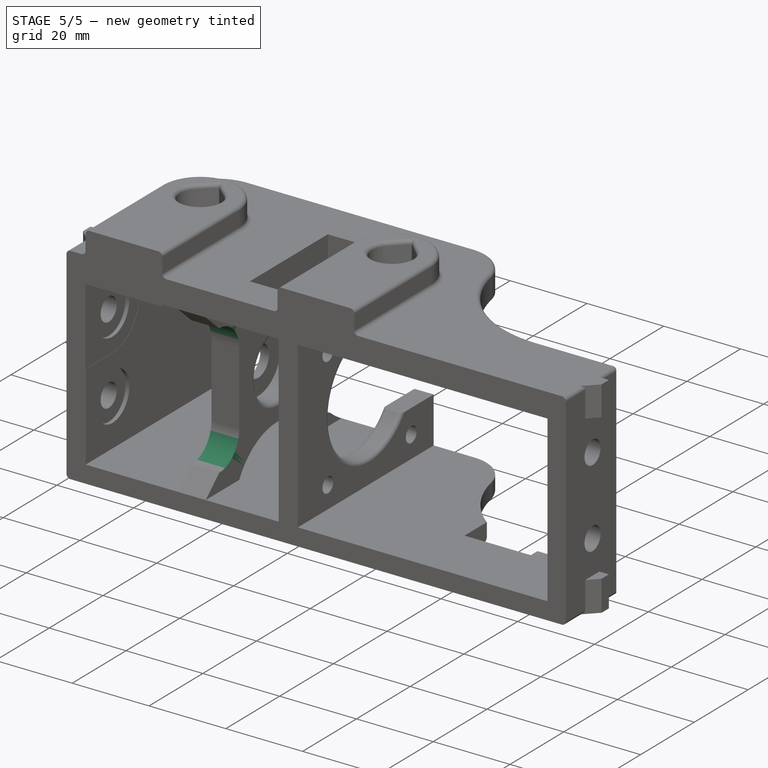
[diagram: stage 5 of 5 — iso view after this stage's code; geometry added in this stage tinted green]
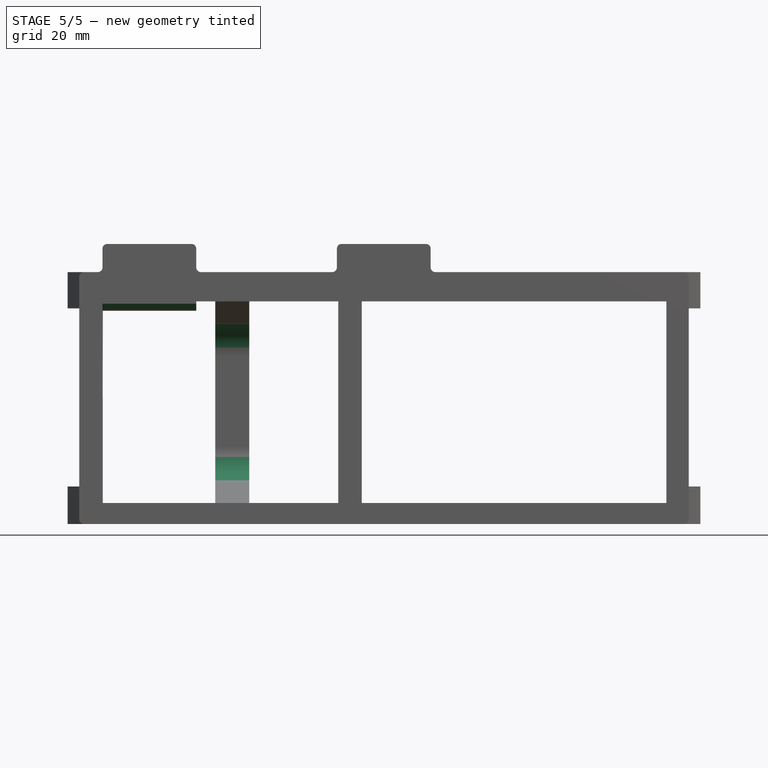
[diagram: stage 5 of 5 — front view after this stage's code; geometry added in this stage tinted green]
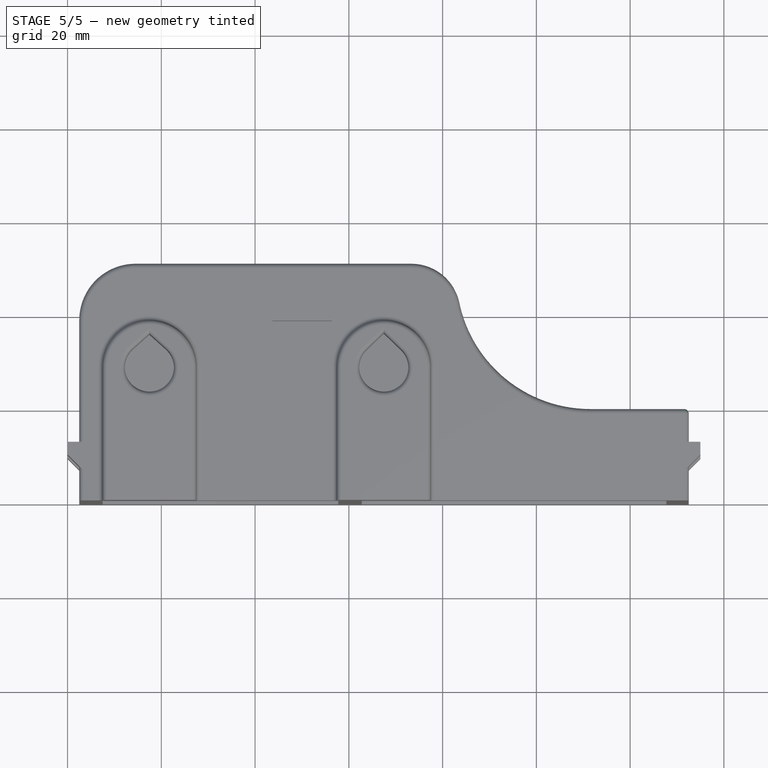
[diagram: stage 5 of 5 — top view after this stage's code; geometry added in this stage tinted green]
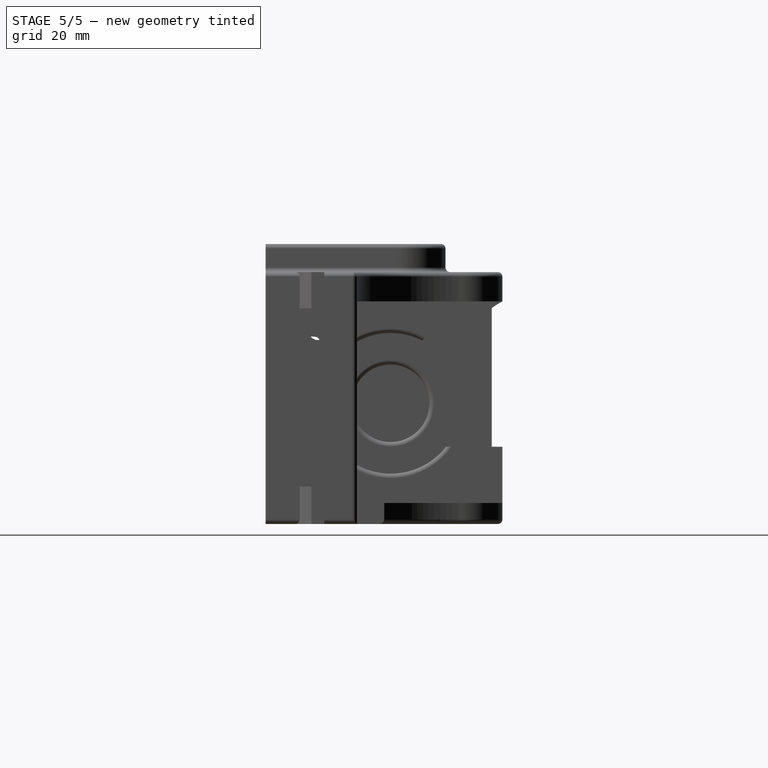
[diagram: stage 5 of 5 — right view after this stage's code; geometry added in this stage tinted green]
FEATURE [Sketcher::SketchObject] Sketch018
  MapMode = 5
  Placement = pos=(27.45,0,0) rot=(0.57735,0.57735,0.57735;2.0944rad)
  Support = -> [Pad001]
  sketch-geometry (4):
    g0: ArcOfCircle CenterX=10 CenterY=37 CenterZ=0 NormalX=0 NormalY=0 NormalZ=1 AngleXU=0 Radius=10 StartAngle=4.71239 EndAngle=7.85398
    g1: ArcOfCircle CenterX=0 CenterY=37 CenterZ=0 NormalX=0 NormalY=0 NormalZ=1 AngleXU=0 Radius=10 StartAngle=1.5708 EndAngle=4.71239
    g2: LineSegment StartX=10 StartY=47 StartZ=0 EndX=0 EndY=47 EndZ=0
    g3: LineSegment StartX=10 StartY=27 StartZ=0 EndX=0 EndY=27 EndZ=0
  constraints (10):
    c: Tangent(g0,g3) = 1.5708
    c: Tangent(g0,g2) = -1.5708
    c: Tangent(g2,g1) = -1.5708
    c: Tangent(g3,g1) = 1.5708
    c: Horizontal(g2)
    c: Equal(g0,g1)
    c: DistanceX(g0) = 10
    c: DistanceY(g0) = 37
    c: Radius(g0) = 10
    c: PointOnObject(g1,g-2)
FEATURE [PartDesign::Pocket] Pocket014
  BaseFeature = -> Pad001
  Length = 20
  Length2 = 100
  Profile = -> Sketch018
  Type = 0
FEATURE [PartDesign::Fillet] Fillet
  Base = -> Pocket014 [Edge140,Edge134,Edge18,Edge14,Edge130,Edge1,Edge33,Edge5,Edge62,Edge225,Edge228,Edge230,Edge232,Edge131,Edge127,Edge317,Edge173,Edge181]
  BaseFeature = -> Pocket014
  Radius = 1
FEATURE [PartDesign::Fillet] Fillet001
  Base = -> Fillet [Edge308,Edge437]
  BaseFeature = -> Fillet
  Radius = 3
FEATURE [PartDesign::Fillet] Fillet002
  Base = -> Fillet001 [Edge72,Edge75]
  BaseFeature = -> Fillet001
  Radius = 7.49
FEATURE [PartDesign::Body] Body
  Group = -> [Sketch,Pad,Sketch001,Pocket,Sketch002,Sketch003,Sketch004,Sketch005,Sketch006,Sketch007,Sketch008,Sketch009,Sketch010,Sketch014,Sketch015,Sketch016,Pocket001,Pocket003,Pocket004,Pocket005,Pocket006,Pocket007,Pocket008,Pocket009,Pocket010,Pocket011,Pocket012,Pocket013,Sketch017,Pad001,Sketch018,Pocket014,Fillet,Fillet001,Fillet002]
  Origin = -> Origin
  Tip = -> Fillet002
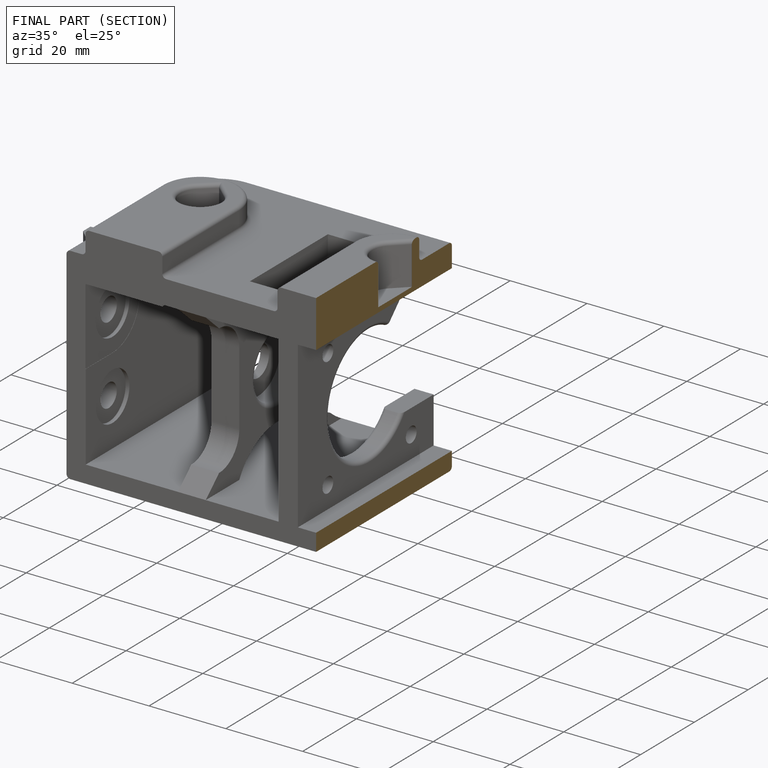
[diagram: finished part — half-section view (interior)]
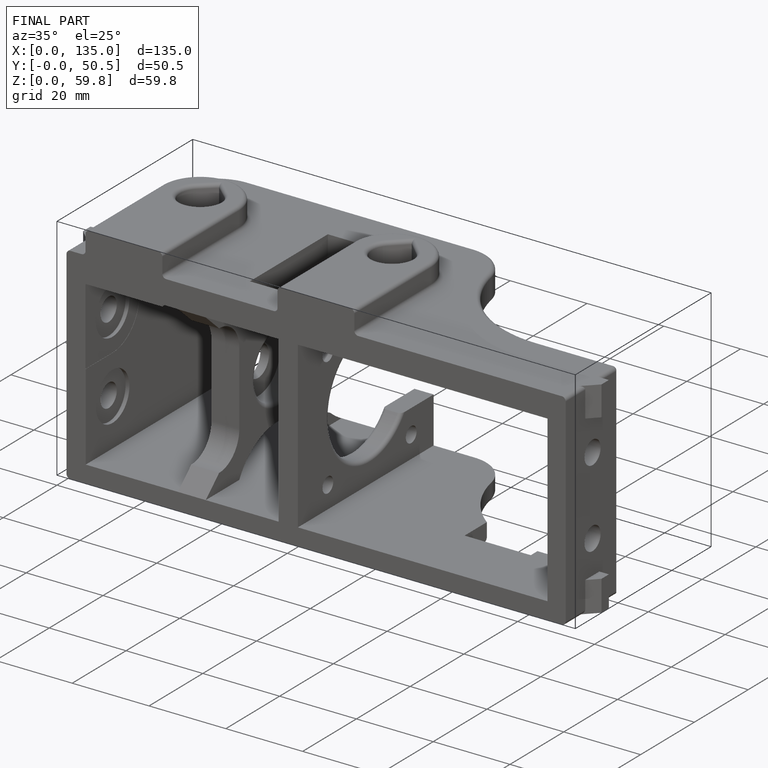
[diagram: finished part — iso view with bounding-box wireframe]
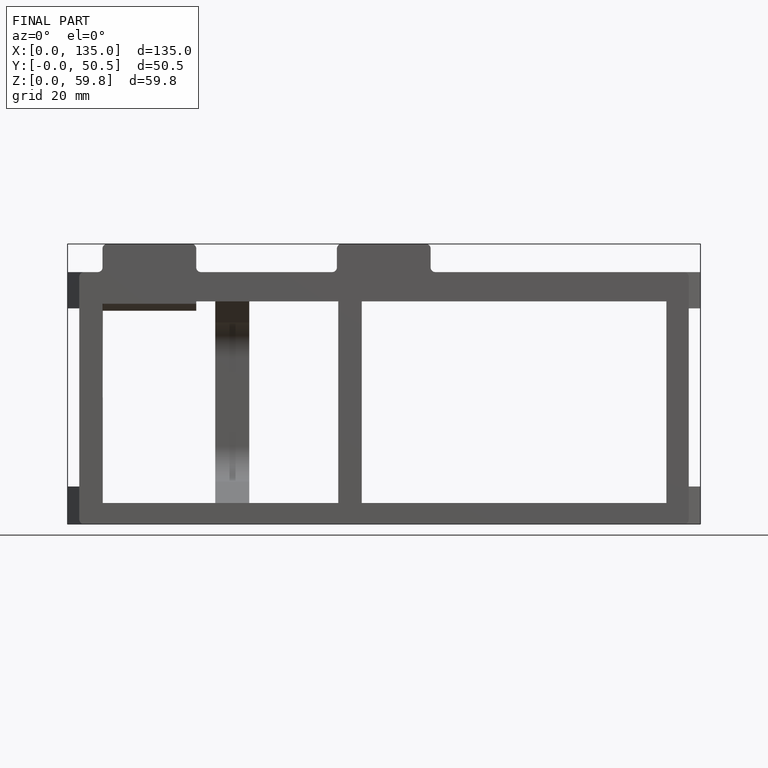
[diagram: finished part — front view with bounding-box wireframe]
